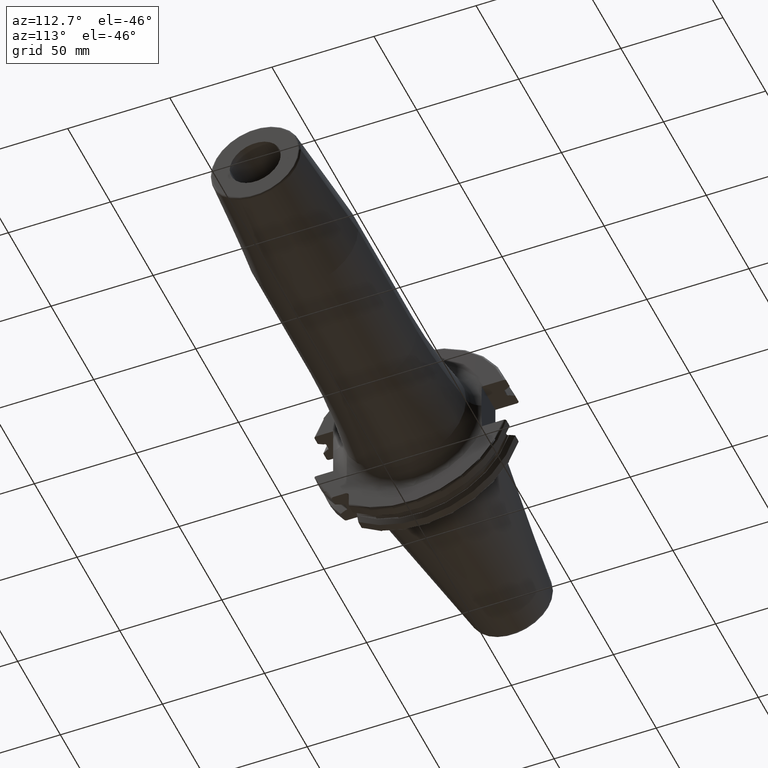
[diagram: clean part render]
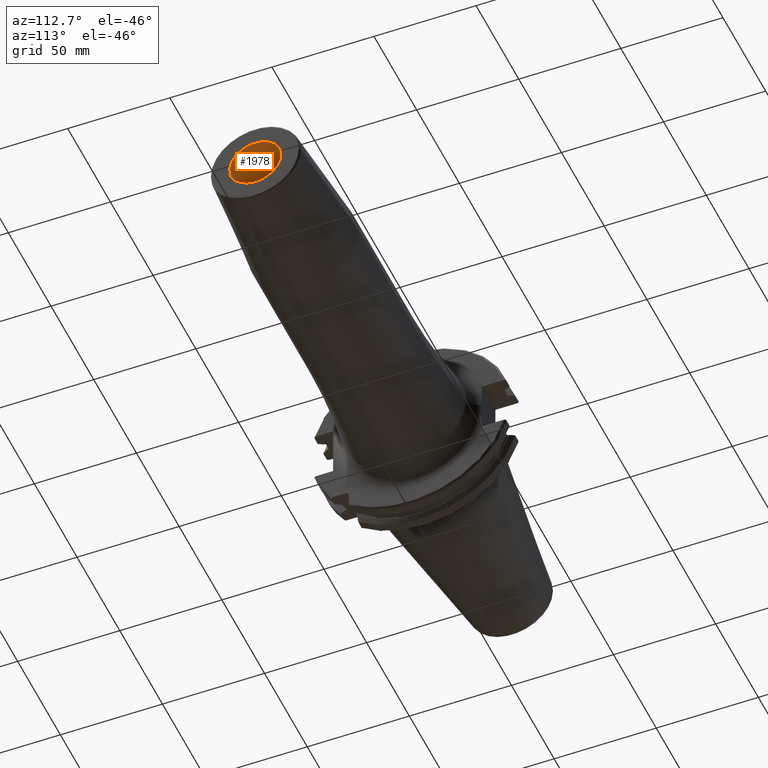
[diagram: same view with one face highlighted and labeled with its STEP entity id]
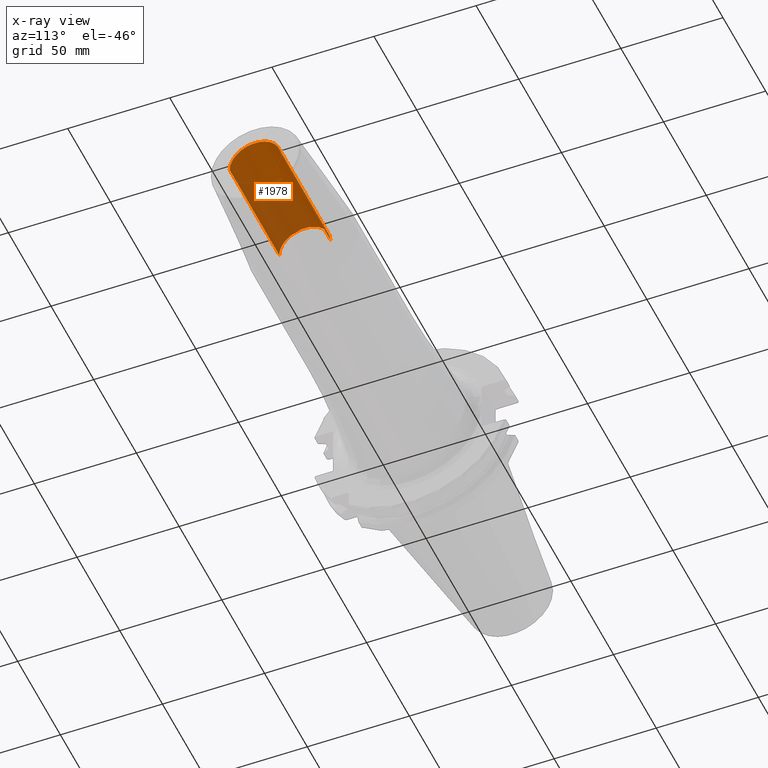
[diagram: x-ray of the same camera — body ghosted, the highlighted face saturated]
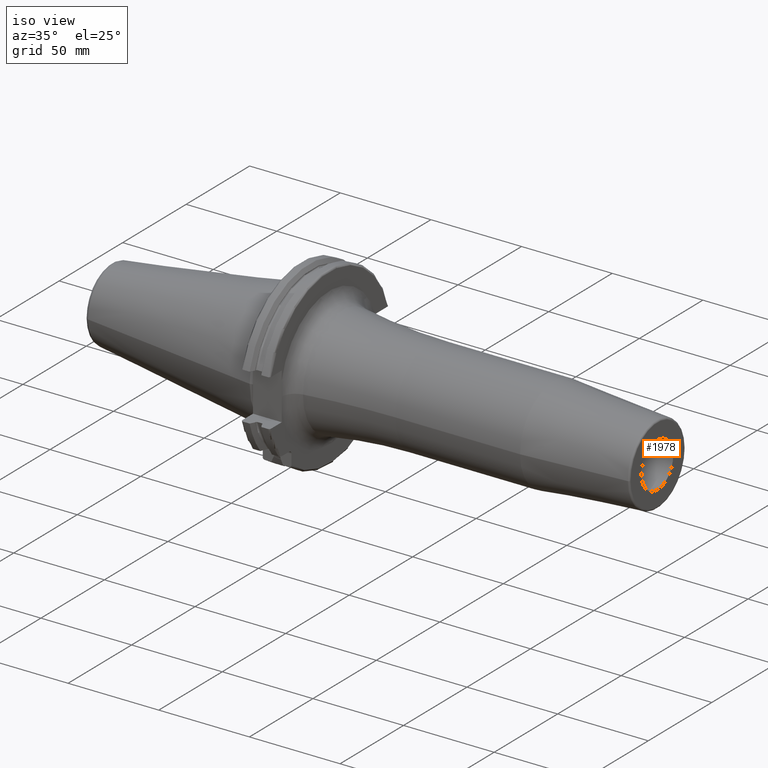
[diagram: same view with one face highlighted and labeled with its STEP entity id]
A machine part, auxiliary view. The second image highlights one B-rep face of the part: STEP entity #1978.
The next image is the same camera in x-ray: the body ghosted, the highlighted face saturated — about 43% of this face is hidden behind the body in this view.
A second angle (iso view) of the same face is appended — the face is thin or edge-on in the first view.
In plain terms, the highlighted cylindrical surface (edge-blend (fillet) strip) has radius 12.5 mm, axis along (-1, 0, 0).
Its self-contained STEP definition (entity closure, byte-faithful):
#316=CARTESIAN_POINT('',(2.E2,0.E0,0.E0));
#317=DIRECTION('',(-1.E0,0.E0,0.E0));
#318=DIRECTION('',(0.E0,-1.E0,0.E0));
#319=AXIS2_PLACEMENT_3D('',#316,#317,#318);
#326=DIRECTION('',(-1.E0,0.E0,0.E0));
#327=VECTOR('',#326,5.8E1);
#328=CARTESIAN_POINT('',(2.E2,-1.25E1,0.E0));
#329=LINE('',#328,#327);
#330=DIRECTION('',(-1.E0,0.E0,0.E0));
#331=VECTOR('',#330,5.8E1);
#332=CARTESIAN_POINT('',(2.E2,1.25E1,0.E0));
#333=LINE('',#332,#331);
#334=CARTESIAN_POINT('',(1.42E2,0.E0,0.E0));
#335=DIRECTION('',(-1.E0,0.E0,0.E0));
#336=DIRECTION('',(0.E0,-1.E0,0.E0));
#337=AXIS2_PLACEMENT_3D('',#334,#335,#336);
#1502=CARTESIAN_POINT('',(1.42E2,-1.25E1,0.E0));
#1503=CARTESIAN_POINT('',(1.42E2,1.25E1,0.E0));
#1504=VERTEX_POINT('',#1502);
#1505=VERTEX_POINT('',#1503);
#1506=CARTESIAN_POINT('',(2.E2,-1.25E1,0.E0));
#1507=CARTESIAN_POINT('',(2.E2,1.25E1,0.E0));
#1508=VERTEX_POINT('',#1506);
#1509=VERTEX_POINT('',#1507);
#1964=CARTESIAN_POINT('',(2.E2,0.E0,0.E0));
#1965=DIRECTION('',(-1.E0,0.E0,0.E0));
#1966=DIRECTION('',(0.E0,-1.E0,0.E0));
#1967=AXIS2_PLACEMENT_3D('',#1964,#1965,#1966);
#1968=CYLINDRICAL_SURFACE('',#1967,1.25E1);
#1969=ORIENTED_EDGE('',*,*,#1957,.T.);
#1971=ORIENTED_EDGE('',*,*,#1970,.T.);
#1973=ORIENTED_EDGE('',*,*,#1972,.F.);
#1975=ORIENTED_EDGE('',*,*,#1974,.F.);
#1976=EDGE_LOOP('',(#1969,#1971,#1973,#1975));
#1977=FACE_OUTER_BOUND('',#1976,.F.);
#1978=ADVANCED_FACE('',(#1977),#1968,.F.);
#320=CIRCLE('',#319,1.25E1);
#338=CIRCLE('',#337,1.25E1);
#1957=EDGE_CURVE('',#1508,#1509,#320,.T.);
#1970=EDGE_CURVE('',#1509,#1505,#333,.T.);
#1972=EDGE_CURVE('',#1504,#1505,#338,.T.);
#1974=EDGE_CURVE('',#1508,#1504,#329,.T.);